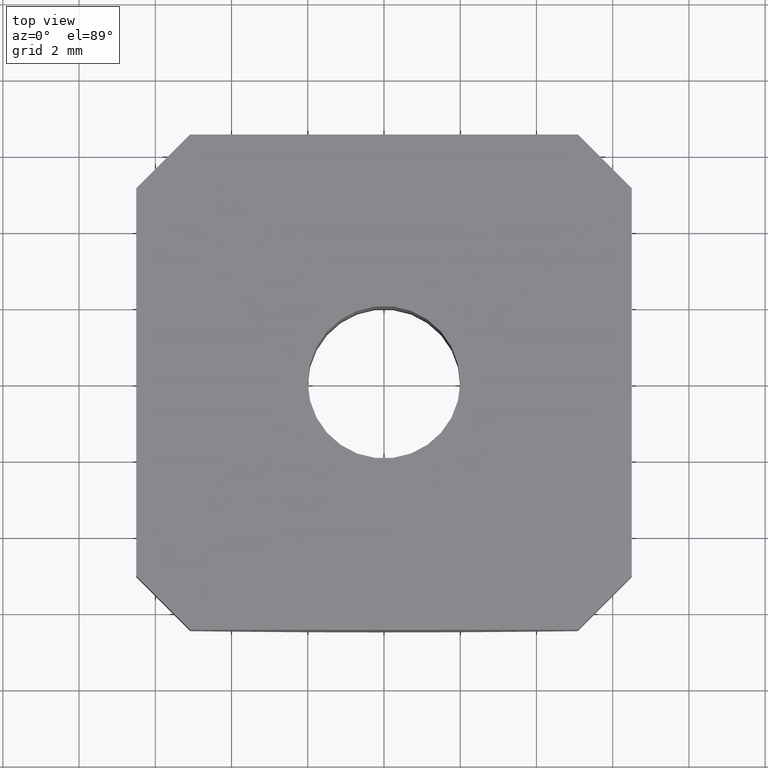
[diagram: clean part render]
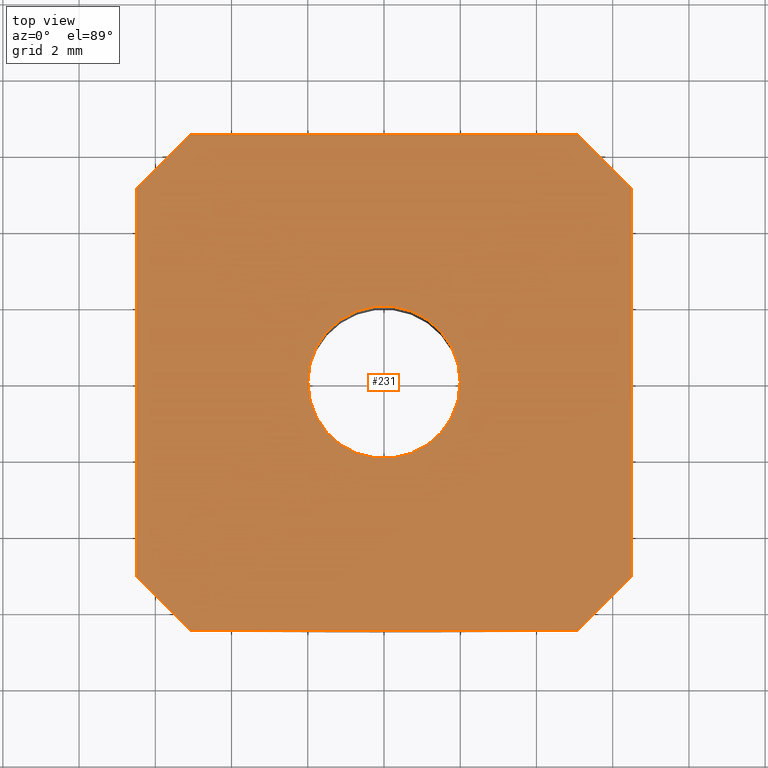
[diagram: same view with one face highlighted and labeled with its STEP entity id]
A machine part, top view. The second image highlights one B-rep face of the part: STEP entity #231.
In plain terms, the highlighted planar face has unit normal (0, 0, 1).
Its self-contained STEP definition (entity closure, byte-faithful):
#5 = CARTESIAN_POINT ( 'NONE',  ( 6.500000000000002665, 5.085786437626907741, 0.0000000000000000000 ) ) ;
#14 = LINE ( 'NONE', #302, #320 ) ;
#35 = CARTESIAN_POINT ( 'NONE',  ( 5.085786437626906853, 6.500000000000003553, 0.0000000000000000000 ) ) ;
#36 = EDGE_CURVE ( 'NONE', #235, #486, #504, .T. ) ;
#38 = CARTESIAN_POINT ( 'NONE',  ( -6.499999999999999112, 5.085786437626910406, 0.0000000000000000000 ) ) ;
#41 = VECTOR ( 'NONE', #194, 1000.000000000000000 ) ;
#43 = DIRECTION ( 'NONE',  ( 0.0000000000000000000, 0.0000000000000000000, -1.000000000000000000 ) ) ;
#51 = EDGE_CURVE ( 'NONE', #155, #491, #305, .T. ) ;
#56 = ORIENTED_EDGE ( 'NONE', *, *, #51, .T. ) ;
#63 = VERTEX_POINT ( 'NONE', #266 ) ;
#69 = VERTEX_POINT ( 'NONE', #449 ) ;
#71 = PLANE ( 'NONE',  #350 ) ;
#79 = ORIENTED_EDGE ( 'NONE', *, *, #514, .T. ) ;
#89 = EDGE_LOOP ( 'NONE', ( #214, #99, #56, #425, #330, #131, #79, #566 ) ) ;
#92 = CARTESIAN_POINT ( 'NONE',  ( -5.085786437626904188, 6.500000000000005329, 0.0000000000000000000 ) ) ;
#98 = LINE ( 'NONE', #379, #551 ) ;
#99 = ORIENTED_EDGE ( 'NONE', *, *, #545, .T. ) ;
#103 = VECTOR ( 'NONE', #159, 1000.000000000000000 ) ;
#104 = CARTESIAN_POINT ( 'NONE',  ( -5.085786437626904188, 6.500000000000005329, 0.0000000000000000000 ) ) ;
#106 = DIRECTION ( 'NONE',  ( 0.0000000000000000000, 0.0000000000000000000, -1.000000000000000000 ) ) ;
#116 = DIRECTION ( 'NONE',  ( -1.000000000000000000, 0.0000000000000000000, 0.0000000000000000000 ) ) ;
#131 = ORIENTED_EDGE ( 'NONE', *, *, #375, .T. ) ;
#138 = LINE ( 'NONE', #334, #41 ) ;
#140 = EDGE_CURVE ( 'NONE', #63, #169, #138, .T. ) ;
#143 = VECTOR ( 'NONE', #540, 1000.000000000000114 ) ;
#151 = CARTESIAN_POINT ( 'NONE',  ( 5.085786437626906853, -6.500000000000002665, 0.0000000000000000000 ) ) ;
#155 = VERTEX_POINT ( 'NONE', #281 ) ;
#159 = DIRECTION ( 'NONE',  ( 0.0000000000000000000, -1.000000000000000000, -0.0000000000000000000 ) ) ;
#168 = LINE ( 'NONE', #477, #103 ) ;
#169 = VERTEX_POINT ( 'NONE', #151 ) ;
#194 = DIRECTION ( 'NONE',  ( 1.000000000000000000, 0.0000000000000000000, -0.0000000000000000000 ) ) ;
#205 = CIRCLE ( 'NONE', #427, 2.000000000000000000 ) ;
#208 = EDGE_CURVE ( 'NONE', #503, #69, #445, .T. ) ;
#214 = ORIENTED_EDGE ( 'NONE', *, *, #453, .T. ) ;
#216 = VECTOR ( 'NONE', #436, 1000.000000000000000 ) ;
#231 = ADVANCED_FACE ( 'NONE', ( #538, #271 ), #71, .T. ) ;
#232 = LINE ( 'NONE', #433, #434 ) ;
#235 = VERTEX_POINT ( 'NONE', #104 ) ;
#248 = CARTESIAN_POINT ( 'NONE',  ( 0.0000000000000000000, 0.0000000000000000000, 0.0000000000000000000 ) ) ;
#251 = DIRECTION ( 'NONE',  ( -1.000000000000000000, -0.0000000000000000000, 0.0000000000000000000 ) ) ;
#266 = CARTESIAN_POINT ( 'NONE',  ( -5.085786437626905077, -6.500000000000002665, 0.0000000000000000000 ) ) ;
#271 = FACE_OUTER_BOUND ( 'NONE', #89, .T. ) ;
#275 = CARTESIAN_POINT ( 'NONE',  ( 6.500000000000000888, -5.085786437626907741, 0.0000000000000000000 ) ) ;
#281 = CARTESIAN_POINT ( 'NONE',  ( 6.500000000000000888, 5.085786437626908629, 0.0000000000000000000 ) ) ;
#302 = CARTESIAN_POINT ( 'NONE',  ( 6.500000000000000888, 6.591949000000000730E-16, 0.0000000000000000000 ) ) ;
#305 = LINE ( 'NONE', #5, #143 ) ;
#320 = VECTOR ( 'NONE', #527, 1000.000000000000000 ) ;
#322 = VERTEX_POINT ( 'NONE', #275 ) ;
#330 = ORIENTED_EDGE ( 'NONE', *, *, #36, .T. ) ;
#334 = CARTESIAN_POINT ( 'NONE',  ( 8.326673000000000714E-16, -6.500000000000002665, 0.0000000000000000000 ) ) ;
#350 = AXIS2_PLACEMENT_3D ( 'NONE', #374, #523, #418 ) ;
#359 = LINE ( 'NONE', #531, #216 ) ;
#374 = CARTESIAN_POINT ( 'NONE',  ( 8.326673000000000714E-16, 6.591949000000000730E-16, 0.0000000000000000000 ) ) ;
#375 = EDGE_CURVE ( 'NONE', #486, #458, #168, .T. ) ;
#379 = CARTESIAN_POINT ( 'NONE',  ( 5.085786437626905965, -6.500000000000003553, 0.0000000000000000000 ) ) ;
#391 = VECTOR ( 'NONE', #450, 1000.000000000000114 ) ;
#418 = DIRECTION ( 'NONE',  ( 1.000000000000000000, 0.0000000000000000000, -0.0000000000000000000 ) ) ;
#423 = DIRECTION ( 'NONE',  ( -1.000000000000000000, 0.0000000000000000000, 0.0000000000000000000 ) ) ;
#425 = ORIENTED_EDGE ( 'NONE', *, *, #534, .T. ) ;
#427 = AXIS2_PLACEMENT_3D ( 'NONE', #248, #43, #116 ) ;
#430 = CARTESIAN_POINT ( 'NONE',  ( -6.500000000000000888, -5.085786437626906853, 0.0000000000000000000 ) ) ;
#433 = CARTESIAN_POINT ( 'NONE',  ( 8.326673000000000714E-16, 6.500000000000003553, 0.0000000000000000000 ) ) ;
#434 = VECTOR ( 'NONE', #251, 1000.000000000000000 ) ;
#435 = ORIENTED_EDGE ( 'NONE', *, *, #541, .T. ) ;
#436 = DIRECTION ( 'NONE',  ( 0.7071067811865473507, -0.7071067811865477948, 0.0000000000000000000 ) ) ;
#445 = CIRCLE ( 'NONE', #567, 2.000000000000000000 ) ;
#449 = CARTESIAN_POINT ( 'NONE',  ( -2.000000000000000000, 0.0000000000000000000, 0.0000000000000000000 ) ) ;
#450 = DIRECTION ( 'NONE',  ( -0.7071067811865474617, -0.7071067811865474617, 0.0000000000000000000 ) ) ;
#453 = EDGE_CURVE ( 'NONE', #169, #322, #98, .T. ) ;
#458 = VERTEX_POINT ( 'NONE', #430 ) ;
#462 = EDGE_LOOP ( 'NONE', ( #435, #536 ) ) ;
#477 = CARTESIAN_POINT ( 'NONE',  ( -6.499999999999999112, 6.591949000000000730E-16, 0.0000000000000000000 ) ) ;
#486 = VERTEX_POINT ( 'NONE', #38 ) ;
#491 = VERTEX_POINT ( 'NONE', #35 ) ;
#503 = VERTEX_POINT ( 'NONE', #524 ) ;
#504 = LINE ( 'NONE', #92, #391 ) ;
#514 = EDGE_CURVE ( 'NONE', #458, #63, #359, .T. ) ;
#516 = CARTESIAN_POINT ( 'NONE',  ( 0.0000000000000000000, 0.0000000000000000000, 0.0000000000000000000 ) ) ;
#523 = DIRECTION ( 'NONE',  ( 0.0000000000000000000, 0.0000000000000000000, 1.000000000000000000 ) ) ;
#524 = CARTESIAN_POINT ( 'NONE',  ( 2.000000000000000000, 2.449293598294706414E-16, 0.0000000000000000000 ) ) ;
#527 = DIRECTION ( 'NONE',  ( -0.0000000000000000000, 1.000000000000000000, 0.0000000000000000000 ) ) ;
#531 = CARTESIAN_POINT ( 'NONE',  ( -6.500000000000000888, -5.085786437626906853, 0.0000000000000000000 ) ) ;
#534 = EDGE_CURVE ( 'NONE', #491, #235, #232, .T. ) ;
#536 = ORIENTED_EDGE ( 'NONE', *, *, #208, .T. ) ;
#538 = FACE_BOUND ( 'NONE', #462, .T. ) ;
#540 = DIRECTION ( 'NONE',  ( -0.7071067811865474617, 0.7071067811865474617, 0.0000000000000000000 ) ) ;
#541 = EDGE_CURVE ( 'NONE', #69, #503, #205, .T. ) ;
#545 = EDGE_CURVE ( 'NONE', #322, #155, #14, .T. ) ;
#551 = VECTOR ( 'NONE', #556, 1000.000000000000000 ) ;
#556 = DIRECTION ( 'NONE',  ( 0.7071067811865473507, 0.7071067811865477948, 0.0000000000000000000 ) ) ;
#566 = ORIENTED_EDGE ( 'NONE', *, *, #140, .T. ) ;
#567 = AXIS2_PLACEMENT_3D ( 'NONE', #516, #106, #423 ) ;